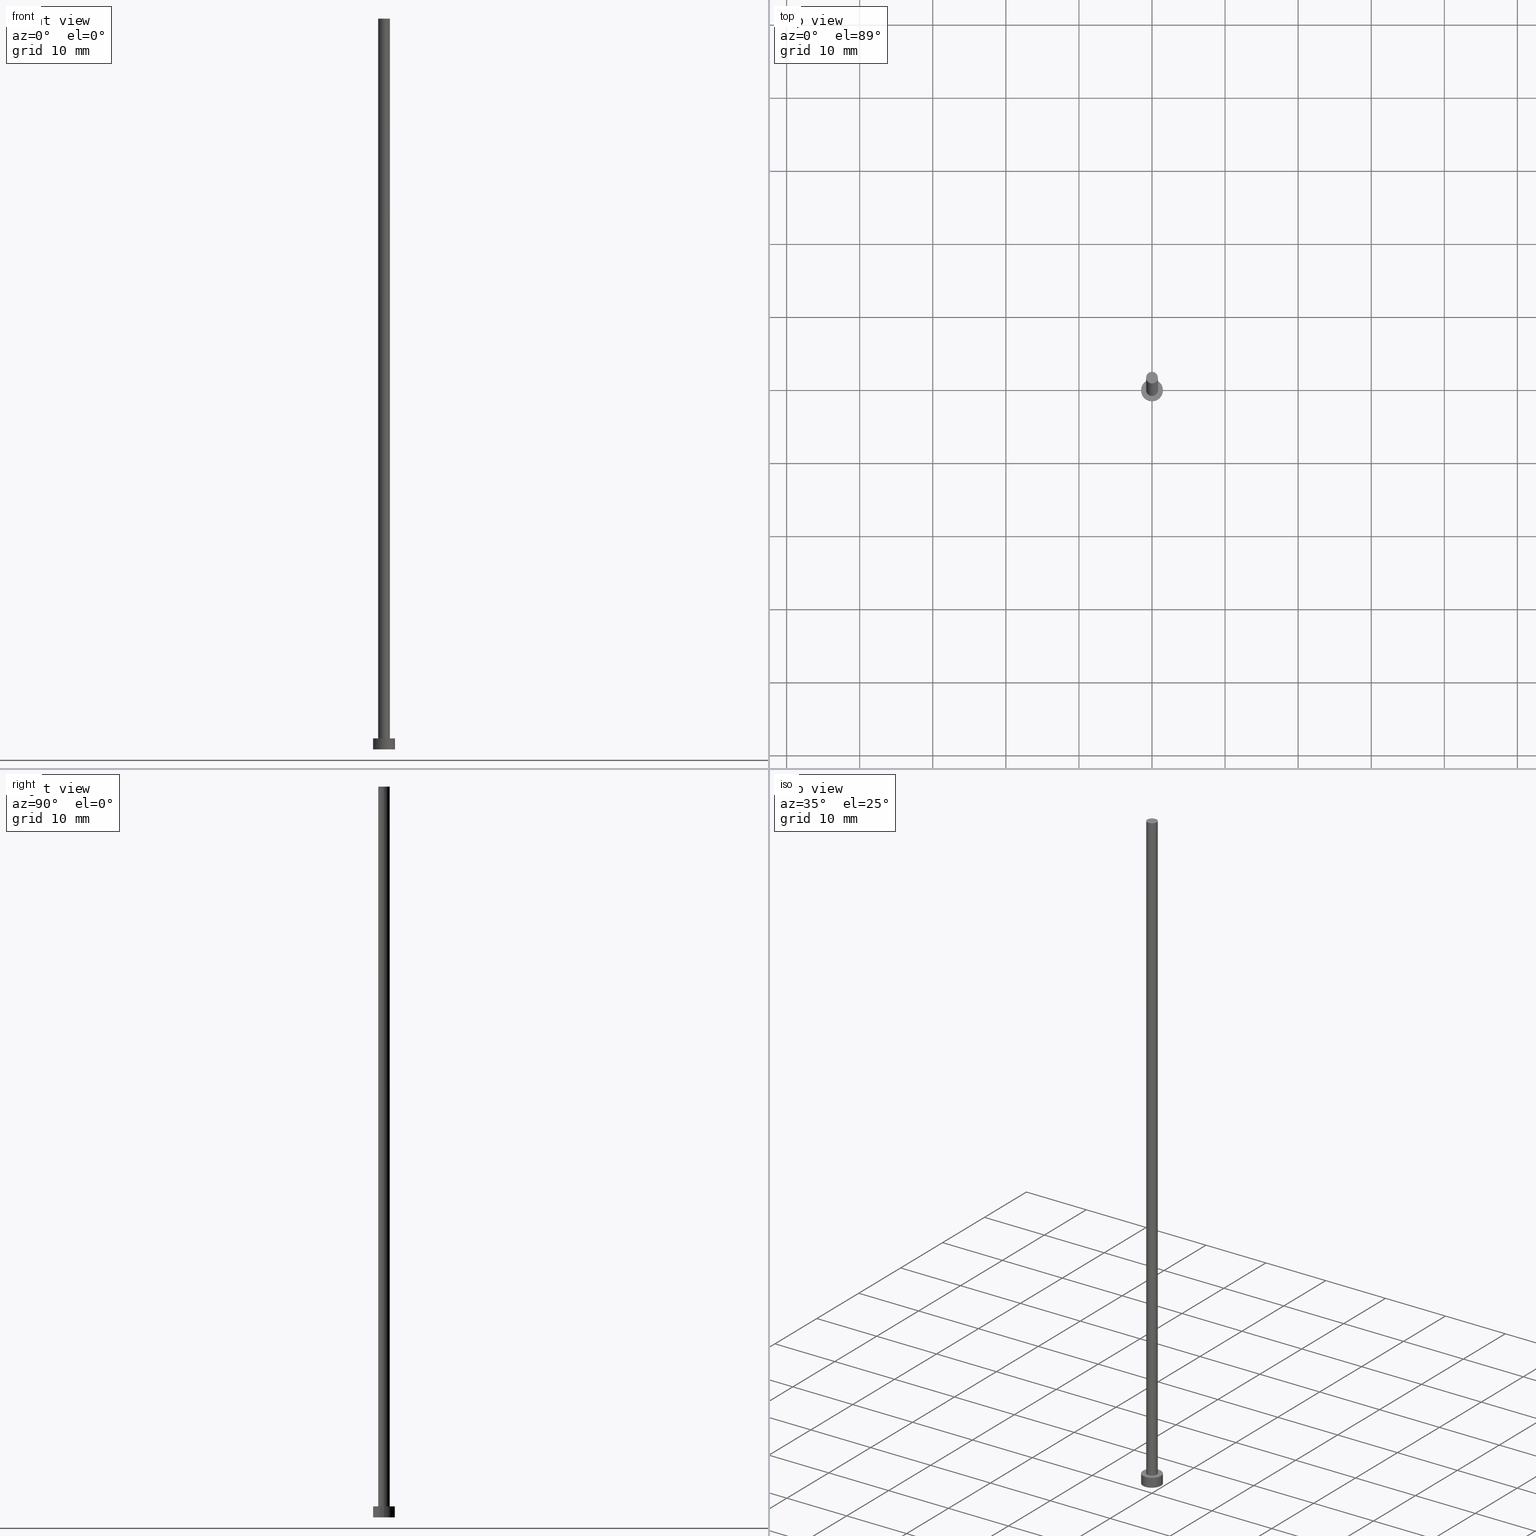
[diagram: canonical four-view strip — front | top / right | iso, engineering-drawing reading convention]
A machine part, canonical four-view strip (front | top / right | iso — engineering-drawing reading convention). The complete STEP part file that produces these views, byte-faithful:
ISO-10303-21;
HEADER;
FILE_DESCRIPTION (( 'STEP AP203' ),
    '1' );
FILE_NAME ('5a9c.STEP',
    '2023-02-13T15:24:27',
    ( '' ),
    ( '' ),
    'SwSTEP 2.0',
    'SolidWorks 2019',
    '' );
FILE_SCHEMA (( 'CONFIG_CONTROL_DESIGN' ));
ENDSEC;

DATA;
#1 = CC_DESIGN_PERSON_AND_ORGANIZATION_ASSIGNMENT ( #5, #73, ( #183 ) ) ;
#2 = PLANE ( 'NONE',  #59 ) ;
#3 = VERTEX_POINT ( 'NONE', #139 ) ;
#4 = CC_DESIGN_SECURITY_CLASSIFICATION ( #219, ( #183 ) ) ;
#5 = PERSON_AND_ORGANIZATION ( #140, #138 ) ;
#6 = ORIENTED_EDGE ( 'NONE', *, *, #14, .F. ) ;
#7 = EDGE_LOOP ( 'NONE', ( #233, #6 ) ) ;
#8 = APPROVAL_ROLE ( '' ) ;
#9 = AXIS2_PLACEMENT_3D ( 'NONE', #137, #55, #33 ) ;
#10 = DIRECTION ( 'NONE',  ( -0.000000000000000000, -0.000000000000000000, -1.000000000000000000 ) ) ;
#11 = AXIS2_PLACEMENT_3D ( 'NONE', #152, #54, #52 ) ;
#12 = CARTESIAN_POINT ( 'NONE',  ( -1.500000000000000222, 0.000000000000000000, 1.500000000000000000 ) ) ;
#13 = CYLINDRICAL_SURFACE ( 'NONE', #246, 1.500000000000000222 ) ;
#14 = EDGE_CURVE ( 'NONE', #3, #47, #179, .T. ) ;
#15 = LOCAL_TIME ( 16, 24, 27.00000000000000000, #210 ) ;
#16 = DIRECTION ( 'NONE',  ( 1.000000000000000000, 0.000000000000000000, -0.000000000000000000 ) ) ;
#17 = CYLINDRICAL_SURFACE ( 'NONE', #244, 1.500000000000000222 ) ;
#18 = MANIFOLD_SOLID_BREP ( 'P�idat vysunut�m3', #252 ) ;
#19 = PLANE ( 'NONE',  #35 ) ;
#20 = VECTOR ( 'NONE', #58, 1000.000000000000000 ) ;
#21 = VECTOR ( 'NONE', #44, 1000.000000000000000 ) ;
#22 = CC_DESIGN_PERSON_AND_ORGANIZATION_ASSIGNMENT ( #29, #186, ( #183 ) ) ;
#23 = DATE_AND_TIME ( #171, #200 ) ;
#24 = EDGE_LOOP ( 'NONE', ( #28, #226, #89, #98 ) ) ;
#25 = APPROVAL_STATUS ( 'not_yet_approved' ) ;
#26 = ADVANCED_FACE ( 'NONE', ( #173 ), #81, .T. ) ;
#27 = SHAPE_DEFINITION_REPRESENTATION ( #222, #225 ) ;
#28 = ORIENTED_EDGE ( 'NONE', *, *, #214, .F. ) ;
#29 = PERSON_AND_ORGANIZATION ( #140, #138 ) ;
#30 = DATE_TIME_ROLE ( 'classification_date' ) ;
#31 = EDGE_LOOP ( 'NONE', ( #48, #88 ) ) ;
#32 = ORIENTED_EDGE ( 'NONE', *, *, #113, .T. ) ;
#33 = DIRECTION ( 'NONE',  ( 1.000000000000000000, 0.000000000000000000, -0.000000000000000000 ) ) ;
#34 = APPLICATION_PROTOCOL_DEFINITION ( 'international standard', 'config_control_design', 1994, #106 ) ;
#35 = AXIS2_PLACEMENT_3D ( 'NONE', #221, #143, #145 ) ;
#36 = CARTESIAN_POINT ( 'NONE',  ( -0.8000000000000000444, 0.000000000000000000, 1.500000000000000000 ) ) ;
#37 = CARTESIAN_POINT ( 'NONE',  ( 0.000000000000000000, 0.000000000000000000, 1.500000000000000000 ) ) ;
#38 =( LENGTH_UNIT ( ) NAMED_UNIT ( * ) SI_UNIT ( .MILLI., .METRE. ) );
#39 = CC_DESIGN_APPROVAL ( #136, ( #227 ) ) ;
#40 = CARTESIAN_POINT ( 'NONE',  ( 0.000000000000000000, 0.000000000000000000, 1.500000000000000000 ) ) ;
#41 = EDGE_CURVE ( 'NONE', #90, #156, #177, .T. ) ;
#42 = DIRECTION ( 'NONE',  ( 0.000000000000000000, 0.000000000000000000, 1.000000000000000000 ) ) ;
#43 = LOCAL_TIME ( 16, 24, 27.00000000000000000, #93 ) ;
#44 = DIRECTION ( 'NONE',  ( -0.000000000000000000, -0.000000000000000000, -1.000000000000000000 ) ) ;
#45 = EDGE_CURVE ( 'NONE', #79, #156, #238, .T. ) ;
#46 = EDGE_CURVE ( 'NONE', #56, #79, #202, .T. ) ;
#47 = VERTEX_POINT ( 'NONE', #123 ) ;
#48 = ORIENTED_EDGE ( 'NONE', *, *, #247, .T. ) ;
#49 = PERSON_AND_ORGANIZATION_ROLE ( 'design_owner' ) ;
#50 = VECTOR ( 'NONE', #60, 1000.000000000000000 ) ;
#51 = DATE_AND_TIME ( #77, #43 ) ;
#52 = DIRECTION ( 'NONE',  ( 1.000000000000000000, 0.000000000000000000, 0.000000000000000000 ) ) ;
#53 = APPROVAL_DATE_TIME ( #115, #198 ) ;
#54 = DIRECTION ( 'NONE',  ( 0.000000000000000000, 0.000000000000000000, 1.000000000000000000 ) ) ;
#55 = DIRECTION ( 'NONE',  ( 0.000000000000000000, 0.000000000000000000, 1.000000000000000000 ) ) ;
#56 = VERTEX_POINT ( 'NONE', #196 ) ;
#57 = AXIS2_PLACEMENT_3D ( 'NONE', #108, #164, #67 ) ;
#58 = DIRECTION ( 'NONE',  ( -0.000000000000000000, -0.000000000000000000, -1.000000000000000000 ) ) ;
#59 = AXIS2_PLACEMENT_3D ( 'NONE', #178, #201, #16 ) ;
#60 = DIRECTION ( 'NONE',  ( -0.000000000000000000, -0.000000000000000000, -1.000000000000000000 ) ) ;
#61 = ADVANCED_FACE ( 'NONE', ( #175 ), #80, .T. ) ;
#62 = FACE_OUTER_BOUND ( 'NONE', #166, .T. ) ;
#63 = CIRCLE ( 'NONE', #82, 1.500000000000000222 ) ;
#64 = FACE_OUTER_BOUND ( 'NONE', #7, .T. ) ;
#65 = ORIENTED_EDGE ( 'NONE', *, *, #169, .F. ) ;
#66 = FACE_OUTER_BOUND ( 'NONE', #94, .T. ) ;
#67 = DIRECTION ( 'NONE',  ( -1.000000000000000000, 0.000000000000000000, 0.000000000000000000 ) ) ;
#68 = VECTOR ( 'NONE', #160, 1000.000000000000000 ) ;
#69 =( GEOMETRIC_REPRESENTATION_CONTEXT ( 3 ) GLOBAL_UNCERTAINTY_ASSIGNED_CONTEXT ( ( #124 ) ) GLOBAL_UNIT_ASSIGNED_CONTEXT ( ( #38, #254, #240 ) ) REPRESENTATION_CONTEXT ( 'NONE', 'WORKASPACE' ) );
#70 = EDGE_CURVE ( 'NONE', #47, #3, #63, .T. ) ;
#71 = PERSON_AND_ORGANIZATION ( #140, #138 ) ;
#72 = CC_DESIGN_PERSON_AND_ORGANIZATION_ASSIGNMENT ( #242, #49, ( #130 ) ) ;
#73 = PERSON_AND_ORGANIZATION_ROLE ( 'design_supplier' ) ;
#74 = DIRECTION ( 'NONE',  ( -1.000000000000000000, 0.000000000000000000, 0.000000000000000000 ) ) ;
#75 = ORIENTED_EDGE ( 'NONE', *, *, #41, .F. ) ;
#76 = CIRCLE ( 'NONE', #211, 0.8000000000000000444 ) ;
#77 = CALENDAR_DATE ( 2023, 13, 2 ) ;
#78 = CALENDAR_DATE ( 2023, 13, 2 ) ;
#79 = VERTEX_POINT ( 'NONE', #36 ) ;
#80 = PLANE ( 'NONE',  #9 ) ;
#81 = CYLINDRICAL_SURFACE ( 'NONE', #92, 0.8000000000000000444 ) ;
#82 = AXIS2_PLACEMENT_3D ( 'NONE', #158, #194, #102 ) ;
#83 = CARTESIAN_POINT ( 'NONE',  ( 0.000000000000000000, 0.000000000000000000, 100.0000000000000000 ) ) ;
#84 = DIRECTION ( 'NONE',  ( 1.000000000000000000, 0.000000000000000000, 0.000000000000000000 ) ) ;
#85 = DIRECTION ( 'NONE',  ( 0.000000000000000000, 0.000000000000000000, 1.000000000000000000 ) ) ;
#86 = DESIGN_CONTEXT ( 'detailed design', #255, 'design' ) ;
#87 = DIRECTION ( 'NONE',  ( 0.000000000000000000, 0.000000000000000000, 1.000000000000000000 ) ) ;
#88 = ORIENTED_EDGE ( 'NONE', *, *, #214, .T. ) ;
#89 = ORIENTED_EDGE ( 'NONE', *, *, #14, .T. ) ;
#90 = VERTEX_POINT ( 'NONE', #239 ) ;
#91 = CALENDAR_DATE ( 2023, 13, 2 ) ;
#92 = AXIS2_PLACEMENT_3D ( 'NONE', #159, #10, #103 ) ;
#93 = COORDINATED_UNIVERSAL_TIME_OFFSET ( 1, 0, .AHEAD. ) ;
#94 = EDGE_LOOP ( 'NONE', ( #206, #249, #185, #213 ) ) ;
#95 = LOCAL_TIME ( 16, 24, 27.00000000000000000, #231 ) ;
#96 = PERSON_AND_ORGANIZATION_ROLE ( 'creator' ) ;
#97 = DATE_TIME_ROLE ( 'creation_date' ) ;
#98 = ORIENTED_EDGE ( 'NONE', *, *, #113, .F. ) ;
#99 = VERTEX_POINT ( 'NONE', #119 ) ;
#100 = CARTESIAN_POINT ( 'NONE',  ( -0.8000000000000000444, 0.000000000000000000, 100.0000000000000000 ) ) ;
#101 = DIRECTION ( 'NONE',  ( 0.000000000000000000, 0.000000000000000000, 1.000000000000000000 ) ) ;
#102 = DIRECTION ( 'NONE',  ( 1.000000000000000000, 0.000000000000000000, 0.000000000000000000 ) ) ;
#103 = DIRECTION ( 'NONE',  ( -1.000000000000000000, 0.000000000000000000, 0.000000000000000000 ) ) ;
#104 = CARTESIAN_POINT ( 'NONE',  ( 0.000000000000000000, 0.000000000000000000, 1.500000000000000000 ) ) ;
#105 = CYLINDRICAL_SURFACE ( 'NONE', #57, 0.8000000000000000444 ) ;
#106 = APPLICATION_CONTEXT ( 'configuration controlled 3d designs of mechanical parts and assemblies' ) ;
#107 = CARTESIAN_POINT ( 'NONE',  ( 0.8000000000000000444, 9.797174393178826150E-17, 1.500000000000000000 ) ) ;
#108 = CARTESIAN_POINT ( 'NONE',  ( 0.000000000000000000, 0.000000000000000000, 100.0000000000000000 ) ) ;
#109 = DIRECTION ( 'NONE',  ( 1.000000000000000000, 0.000000000000000000, 0.000000000000000000 ) ) ;
#110 = CALENDAR_DATE ( 2023, 13, 2 ) ;
#111 = EDGE_LOOP ( 'NONE', ( #116, #208 ) ) ;
#112 = PERSON_AND_ORGANIZATION ( #140, #138 ) ;
#113 = EDGE_CURVE ( 'NONE', #235, #47, #253, .T. ) ;
#114 = APPLICATION_PROTOCOL_DEFINITION ( 'international standard', 'config_control_design', 1994, #255 ) ;
#115 = DATE_AND_TIME ( #91, #95 ) ;
#116 = ORIENTED_EDGE ( 'NONE', *, *, #45, .F. ) ;
#117 = CARTESIAN_POINT ( 'NONE',  ( 0.000000000000000000, 0.000000000000000000, 0.000000000000000000 ) ) ;
#118 = DIRECTION ( 'NONE',  ( 1.000000000000000000, 0.000000000000000000, 0.000000000000000000 ) ) ;
#119 = CARTESIAN_POINT ( 'NONE',  ( 1.500000000000000222, 1.836970198721030181E-16, 1.500000000000000000 ) ) ;
#120 = AXIS2_PLACEMENT_3D ( 'NONE', #148, #223, #109 ) ;
#121 = MECHANICAL_CONTEXT ( 'NONE', #106, 'mechanical' ) ;
#122 = DIRECTION ( 'NONE',  ( 0.000000000000000000, 0.000000000000000000, 1.000000000000000000 ) ) ;
#123 = CARTESIAN_POINT ( 'NONE',  ( -1.500000000000000222, 0.000000000000000000, 0.000000000000000000 ) ) ;
#124 = UNCERTAINTY_MEASURE_WITH_UNIT (LENGTH_MEASURE( 1.000000000000000082E-05 ), #38, 'distance_accuracy_value', 'NONE');
#125 = CARTESIAN_POINT ( 'NONE',  ( 0.000000000000000000, 0.000000000000000000, 1.500000000000000000 ) ) ;
#126 = APPROVAL_PERSON_ORGANIZATION ( #71, #245, #248 ) ;
#127 = EDGE_CURVE ( 'NONE', #90, #56, #230, .T. ) ;
#128 = FACE_OUTER_BOUND ( 'NONE', #31, .T. ) ;
#129 = DIRECTION ( 'NONE',  ( 1.000000000000000000, 0.000000000000000000, 0.000000000000000000 ) ) ;
#130 = PRODUCT ( '5a9c', '5a9c', '', ( #121 ) ) ;
#131 = APPROVAL_ROLE ( '' ) ;
#132 = APPROVAL_DATE_TIME ( #23, #245 ) ;
#133 = ORIENTED_EDGE ( 'NONE', *, *, #169, .T. ) ;
#134 = DATE_AND_TIME ( #110, #15 ) ;
#135 = ORIENTED_EDGE ( 'NONE', *, *, #70, .T. ) ;
#136 = APPROVAL ( #25, 'NEUR�EN�' ) ;
#137 = CARTESIAN_POINT ( 'NONE',  ( 0.000000000000000000, 0.000000000000000000, 100.0000000000000000 ) ) ;
#138 = ORGANIZATION ( 'NEUR�EN�', 'NEUR�EN�', '' ) ;
#139 = CARTESIAN_POINT ( 'NONE',  ( 1.500000000000000222, 1.836970198721030181E-16, 0.000000000000000000 ) ) ;
#140 = PERSON ( 'NEUR�EN�', 'NEUR�EN�', 'NEUR�EN�', ('NEUR�EN�'), ('NEUR�EN�'), ('NEUR�EN�') ) ;
#141 = ADVANCED_FACE ( 'NONE', ( #203, #128 ), #19, .T. ) ;
#142 = DIRECTION ( 'NONE',  ( 0.000000000000000000, 0.000000000000000000, 1.000000000000000000 ) ) ;
#143 = DIRECTION ( 'NONE',  ( 0.000000000000000000, 0.000000000000000000, 1.000000000000000000 ) ) ;
#144 = CC_DESIGN_DATE_AND_TIME_ASSIGNMENT ( #191, #97, ( #227 ) ) ;
#145 = DIRECTION ( 'NONE',  ( 1.000000000000000000, 0.000000000000000000, -0.000000000000000000 ) ) ;
#146 = DIRECTION ( 'NONE',  ( 1.000000000000000000, 0.000000000000000000, 0.000000000000000000 ) ) ;
#147 = DIRECTION ( 'NONE',  ( 1.000000000000000000, 0.000000000000000000, 0.000000000000000000 ) ) ;
#148 = CARTESIAN_POINT ( 'NONE',  ( 0.000000000000000000, 0.000000000000000000, 0.000000000000000000 ) ) ;
#149 = LINE ( 'NONE', #224, #21 ) ;
#150 = LOCAL_TIME ( 16, 24, 27.00000000000000000, #229 ) ;
#151 = SECURITY_CLASSIFICATION_LEVEL ( 'unclassified' ) ;
#152 = CARTESIAN_POINT ( 'NONE',  ( 0.000000000000000000, 0.000000000000000000, 1.500000000000000000 ) ) ;
#153 = AXIS2_PLACEMENT_3D ( 'NONE', #83, #87, #161 ) ;
#154 = PERSON_AND_ORGANIZATION ( #140, #138 ) ;
#155 = APPROVAL_PERSON_ORGANIZATION ( #170, #136, #131 ) ;
#156 = VERTEX_POINT ( 'NONE', #107 ) ;
#157 = PERSON_AND_ORGANIZATION ( #140, #138 ) ;
#158 = CARTESIAN_POINT ( 'NONE',  ( 0.000000000000000000, 0.000000000000000000, 0.000000000000000000 ) ) ;
#159 = CARTESIAN_POINT ( 'NONE',  ( 0.000000000000000000, 0.000000000000000000, 100.0000000000000000 ) ) ;
#160 = DIRECTION ( 'NONE',  ( -0.000000000000000000, -0.000000000000000000, -1.000000000000000000 ) ) ;
#161 = DIRECTION ( 'NONE',  ( 1.000000000000000000, 0.000000000000000000, 0.000000000000000000 ) ) ;
#162 = CC_DESIGN_APPROVAL ( #245, ( #183 ) ) ;
#163 = ADVANCED_FACE ( 'NONE', ( #64 ), #2, .F. ) ;
#164 = DIRECTION ( 'NONE',  ( -0.000000000000000000, -0.000000000000000000, -1.000000000000000000 ) ) ;
#165 = ADVANCED_FACE ( 'NONE', ( #62 ), #17, .T. ) ;
#166 = EDGE_LOOP ( 'NONE', ( #188, #218, #32, #135 ) ) ;
#167 = CC_DESIGN_DATE_AND_TIME_ASSIGNMENT ( #51, #30, ( #219 ) ) ;
#168 = APPROVAL_PERSON_ORGANIZATION ( #157, #198, #8 ) ;
#169 = EDGE_CURVE ( 'NONE', #56, #90, #215, .T. ) ;
#170 = PERSON_AND_ORGANIZATION ( #140, #138 ) ;
#171 = CALENDAR_DATE ( 2023, 13, 2 ) ;
#172 = AXIS2_PLACEMENT_3D ( 'NONE', #117, #101, #118 ) ;
#173 = FACE_OUTER_BOUND ( 'NONE', #187, .T. ) ;
#174 = AXIS2_PLACEMENT_3D ( 'NONE', #195, #142, #84 ) ;
#175 = FACE_OUTER_BOUND ( 'NONE', #243, .T. ) ;
#176 = ORIENTED_EDGE ( 'NONE', *, *, #127, .T. ) ;
#177 = LINE ( 'NONE', #237, #20 ) ;
#178 = CARTESIAN_POINT ( 'NONE',  ( 0.000000000000000000, 0.000000000000000000, 0.000000000000000000 ) ) ;
#179 = CIRCLE ( 'NONE', #172, 1.500000000000000222 ) ;
#180 = DIRECTION ( 'NONE',  ( -1.000000000000000000, 0.000000000000000000, 0.000000000000000000 ) ) ;
#181 = CARTESIAN_POINT ( 'NONE',  ( 0.000000000000000000, 0.000000000000000000, 100.0000000000000000 ) ) ;
#182 = ORIENTED_EDGE ( 'NONE', *, *, #45, .T. ) ;
#183 = PRODUCT_DEFINITION_FORMATION_WITH_SPECIFIED_SOURCE ( 'LIBOVOLN�', '', #130, .NOT_KNOWN. ) ;
#184 = ADVANCED_FACE ( 'NONE', ( #66 ), #105, .T. ) ;
#185 = ORIENTED_EDGE ( 'NONE', *, *, #204, .T. ) ;
#186 = PERSON_AND_ORGANIZATION_ROLE ( 'creator' ) ;
#187 = EDGE_LOOP ( 'NONE', ( #75, #65, #251, #182 ) ) ;
#188 = ORIENTED_EDGE ( 'NONE', *, *, #197, .F. ) ;
#189 = CARTESIAN_POINT ( 'NONE',  ( -1.500000000000000222, 0.000000000000000000, 1.500000000000000000 ) ) ;
#190 = PRODUCT_RELATED_PRODUCT_CATEGORY ( 'detail', '', ( #130 ) ) ;
#191 = DATE_AND_TIME ( #78, #150 ) ;
#192 = AXIS2_PLACEMENT_3D ( 'NONE', #37, #122, #146 ) ;
#193 = CC_DESIGN_APPROVAL ( #198, ( #219 ) ) ;
#194 = DIRECTION ( 'NONE',  ( 0.000000000000000000, 0.000000000000000000, 1.000000000000000000 ) ) ;
#195 = CARTESIAN_POINT ( 'NONE',  ( 0.000000000000000000, 0.000000000000000000, 1.500000000000000000 ) ) ;
#196 = CARTESIAN_POINT ( 'NONE',  ( -0.8000000000000000444, 0.000000000000000000, 100.0000000000000000 ) ) ;
#197 = EDGE_CURVE ( 'NONE', #99, #3, #149, .T. ) ;
#198 = APPROVAL ( #234, 'NEUR�EN�' ) ;
#199 = DIRECTION ( 'NONE',  ( -0.000000000000000000, -0.000000000000000000, -1.000000000000000000 ) ) ;
#200 = LOCAL_TIME ( 16, 24, 27.00000000000000000, #228 ) ;
#201 = DIRECTION ( 'NONE',  ( 0.000000000000000000, 0.000000000000000000, 1.000000000000000000 ) ) ;
#202 = LINE ( 'NONE', #100, #68 ) ;
#203 = FACE_BOUND ( 'NONE', #111, .T. ) ;
#204 = EDGE_CURVE ( 'NONE', #156, #79, #76, .T. ) ;
#205 = CC_DESIGN_PERSON_AND_ORGANIZATION_ASSIGNMENT ( #112, #96, ( #227 ) ) ;
#206 = ORIENTED_EDGE ( 'NONE', *, *, #127, .F. ) ;
#207 = ADVANCED_FACE ( 'NONE', ( #241 ), #13, .T. ) ;
#208 = ORIENTED_EDGE ( 'NONE', *, *, #204, .F. ) ;
#209 = APPROVAL_DATE_TIME ( #134, #136 ) ;
#210 = COORDINATED_UNIVERSAL_TIME_OFFSET ( 1, 0, .AHEAD. ) ;
#211 = AXIS2_PLACEMENT_3D ( 'NONE', #40, #42, #129 ) ;
#212 = PERSON_AND_ORGANIZATION_ROLE ( 'classification_officer' ) ;
#213 = ORIENTED_EDGE ( 'NONE', *, *, #46, .F. ) ;
#214 = EDGE_CURVE ( 'NONE', #99, #235, #236, .T. ) ;
#215 = CIRCLE ( 'NONE', #250, 0.8000000000000000444 ) ;
#216 = APPROVAL_STATUS ( 'not_yet_approved' ) ;
#217 = CC_DESIGN_PERSON_AND_ORGANIZATION_ASSIGNMENT ( #154, #212, ( #219 ) ) ;
#218 = ORIENTED_EDGE ( 'NONE', *, *, #247, .F. ) ;
#219 = SECURITY_CLASSIFICATION ( '', '', #151 ) ;
#220 = DIRECTION ( 'NONE',  ( -0.000000000000000000, -0.000000000000000000, -1.000000000000000000 ) ) ;
#221 = CARTESIAN_POINT ( 'NONE',  ( 0.000000000000000000, 0.000000000000000000, 1.500000000000000000 ) ) ;
#222 = PRODUCT_DEFINITION_SHAPE ( 'NONE', 'NONE',  #227 ) ;
#223 = DIRECTION ( 'NONE',  ( 0.000000000000000000, 0.000000000000000000, 1.000000000000000000 ) ) ;
#224 = CARTESIAN_POINT ( 'NONE',  ( 1.500000000000000222, 1.836970198721030181E-16, 1.500000000000000000 ) ) ;
#225 = ADVANCED_BREP_SHAPE_REPRESENTATION ( '5a9c', ( #18, #120 ), #69 ) ;
#226 = ORIENTED_EDGE ( 'NONE', *, *, #197, .T. ) ;
#227 = PRODUCT_DEFINITION ( 'NEZN�M�', '', #183, #86 ) ;
#228 = COORDINATED_UNIVERSAL_TIME_OFFSET ( 1, 0, .AHEAD. ) ;
#229 = COORDINATED_UNIVERSAL_TIME_OFFSET ( 1, 0, .AHEAD. ) ;
#230 = CIRCLE ( 'NONE', #153, 0.8000000000000000444 ) ;
#231 = COORDINATED_UNIVERSAL_TIME_OFFSET ( 1, 0, .AHEAD. ) ;
#232 = CIRCLE ( 'NONE', #174, 1.500000000000000222 ) ;
#233 = ORIENTED_EDGE ( 'NONE', *, *, #70, .F. ) ;
#234 = APPROVAL_STATUS ( 'not_yet_approved' ) ;
#235 = VERTEX_POINT ( 'NONE', #189 ) ;
#236 = CIRCLE ( 'NONE', #11, 1.500000000000000222 ) ;
#237 = CARTESIAN_POINT ( 'NONE',  ( 0.8000000000000000444, 9.797174393178826150E-17, 100.0000000000000000 ) ) ;
#238 = CIRCLE ( 'NONE', #192, 0.8000000000000000444 ) ;
#239 = CARTESIAN_POINT ( 'NONE',  ( 0.8000000000000000444, 9.797174393178826150E-17, 100.0000000000000000 ) ) ;
#240 =( NAMED_UNIT ( * ) SI_UNIT ( $, .STERADIAN. ) SOLID_ANGLE_UNIT ( ) );
#241 = FACE_OUTER_BOUND ( 'NONE', #24, .T. ) ;
#242 = PERSON_AND_ORGANIZATION ( #140, #138 ) ;
#243 = EDGE_LOOP ( 'NONE', ( #133, #176 ) ) ;
#244 = AXIS2_PLACEMENT_3D ( 'NONE', #104, #220, #180 ) ;
#245 = APPROVAL ( #216, 'NEUR�EN�' ) ;
#246 = AXIS2_PLACEMENT_3D ( 'NONE', #125, #199, #74 ) ;
#247 = EDGE_CURVE ( 'NONE', #235, #99, #232, .T. ) ;
#248 = APPROVAL_ROLE ( '' ) ;
#249 = ORIENTED_EDGE ( 'NONE', *, *, #41, .T. ) ;
#250 = AXIS2_PLACEMENT_3D ( 'NONE', #181, #85, #147 ) ;
#251 = ORIENTED_EDGE ( 'NONE', *, *, #46, .T. ) ;
#252 = CLOSED_SHELL ( 'NONE', ( #184, #207, #165, #141, #163, #26, #61 ) ) ;
#253 = LINE ( 'NONE', #12, #50 ) ;
#254 =( NAMED_UNIT ( * ) PLANE_ANGLE_UNIT ( ) SI_UNIT ( $, .RADIAN. ) );
#255 = APPLICATION_CONTEXT ( 'configuration controlled 3d designs of mechanical parts and assemblies' ) ;
ENDSEC;
END-ISO-10303-21;
